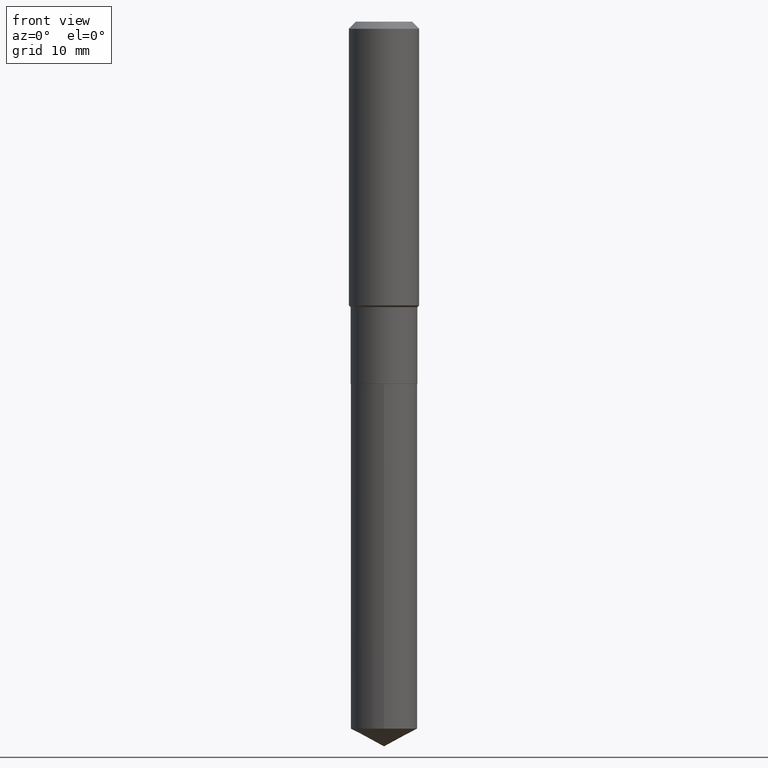
[diagram: clean part render]
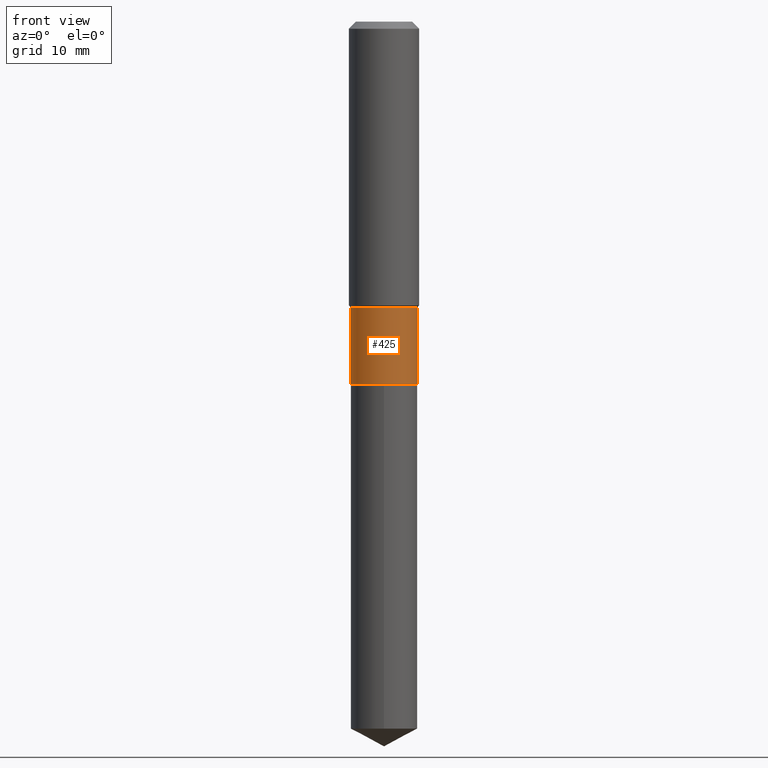
[diagram: same view with one face highlighted and labeled with its STEP entity id]
A machine part, front view. The second image highlights one B-rep face of the part: STEP entity #425.
In plain terms, the highlighted cylindrical surface (edge-blend (fillet) strip) has radius 4.7498 mm, axis along (-0, 0, 1).
Its self-contained STEP definition (entity closure, byte-faithful):
#15 = VERTEX_POINT ( 'NONE', #402 ) ;
#19 = DIRECTION ( 'NONE',  ( -2.445468806185136877E-29, 3.491481338843145188E-15, 1.000000000000000000 ) ) ;
#20 = VERTEX_POINT ( 'NONE', #203 ) ;
#33 = CARTESIAN_POINT ( 'NONE',  ( -0.1869999999999999996, -4.998547566380161442E-15, -2.027000000000000135 ) ) ;
#37 = ORIENTED_EDGE ( 'NONE', *, *, #322, .T. ) ;
#54 = DIRECTION ( 'NONE',  ( 1.000000000000000000, -6.982962677686265133E-15, 0.000000000000000000 ) ) ;
#59 = DIRECTION ( 'NONE',  ( -2.445468806185136597E-29, 3.491481338843145583E-15, 1.000000000000000000 ) ) ;
#88 = AXIS2_PLACEMENT_3D ( 'NONE', #205, #59, #170 ) ;
#92 = VERTEX_POINT ( 'NONE', #253 ) ;
#100 = CARTESIAN_POINT ( 'NONE',  ( -0.1869999999999999718, 1.328714915871387147E-15, -9.198408618776671699E-30 ) ) ;
#108 = AXIS2_PLACEMENT_3D ( 'NONE', #369, #420, #217 ) ;
#148 = EDGE_LOOP ( 'NONE', ( #417, #236, #37, #466 ) ) ;
#155 = CIRCLE ( 'NONE', #428, 0.1869999999999999996 ) ;
#170 = DIRECTION ( 'NONE',  ( 1.000000000000000000, -6.982962677686266711E-15, 4.876176775795935793E-29 ) ) ;
#172 = CYLINDRICAL_SURFACE ( 'NONE', #88, 0.1869999999999999718 ) ;
#198 = LINE ( 'NONE', #346, #212 ) ;
#203 = CARTESIAN_POINT ( 'NONE',  ( -0.1869999999999999440, -4.998547566380162231E-15, -1.597399999999999931 ) ) ;
#205 = CARTESIAN_POINT ( 'NONE',  ( 0.000000000000000000, 0.000000000000000000, 0.000000000000000000 ) ) ;
#212 = VECTOR ( 'NONE', #19, 39.37007874015748143 ) ;
#217 = DIRECTION ( 'NONE',  ( 1.000000000000000000, -6.982962677686267499E-15, 0.000000000000000000 ) ) ;
#236 = ORIENTED_EDGE ( 'NONE', *, *, #306, .T. ) ;
#253 = CARTESIAN_POINT ( 'NONE',  ( 0.1869999999999999996, -8.383046694562388303E-15, -2.027000000000000135 ) ) ;
#306 = EDGE_CURVE ( 'NONE', #379, #92, #155, .T. ) ;
#322 = EDGE_CURVE ( 'NONE', #92, #15, #198, .T. ) ;
#346 = CARTESIAN_POINT ( 'NONE',  ( 0.1869999999999999718, -1.305814020727331607E-15, 9.118450570738398307E-30 ) ) ;
#352 = DIRECTION ( 'NONE',  ( -2.445468806185136877E-29, 3.491481338843145188E-15, 1.000000000000000000 ) ) ;
#366 = VECTOR ( 'NONE', #352, 39.37007874015748143 ) ;
#369 = CARTESIAN_POINT ( 'NONE',  ( 3.906391871000137557E-29, -5.577292290668041271E-15, -1.597399999999999931 ) ) ;
#379 = VERTEX_POINT ( 'NONE', #33 ) ;
#402 = CARTESIAN_POINT ( 'NONE',  ( 0.1869999999999999440, -6.883106311395372484E-15, -1.597399999999999931 ) ) ;
#405 = FACE_OUTER_BOUND ( 'NONE', #148, .T. ) ;
#417 = ORIENTED_EDGE ( 'NONE', *, *, #434, .F. ) ;
#420 = DIRECTION ( 'NONE',  ( -2.445468806185136597E-29, 3.491481338843145583E-15, 1.000000000000000000 ) ) ;
#425 = ADVANCED_FACE ( 'NONE', ( #405 ), #172, .T. ) ;
#428 = AXIS2_PLACEMENT_3D ( 'NONE', #432, #430, #54 ) ;
#430 = DIRECTION ( 'NONE',  ( -2.445468806185136597E-29, 3.491481338843145583E-15, 1.000000000000000000 ) ) ;
#432 = CARTESIAN_POINT ( 'NONE',  ( 4.956965270137272702E-29, -7.077232673835057091E-15, -2.027000000000000135 ) ) ;
#434 = EDGE_CURVE ( 'NONE', #379, #20, #484, .T. ) ;
#445 = CIRCLE ( 'NONE', #108, 0.1869999999999999440 ) ;
#466 = ORIENTED_EDGE ( 'NONE', *, *, #474, .F. ) ;
#474 = EDGE_CURVE ( 'NONE', #20, #15, #445, .T. ) ;
#484 = LINE ( 'NONE', #100, #366 ) ;